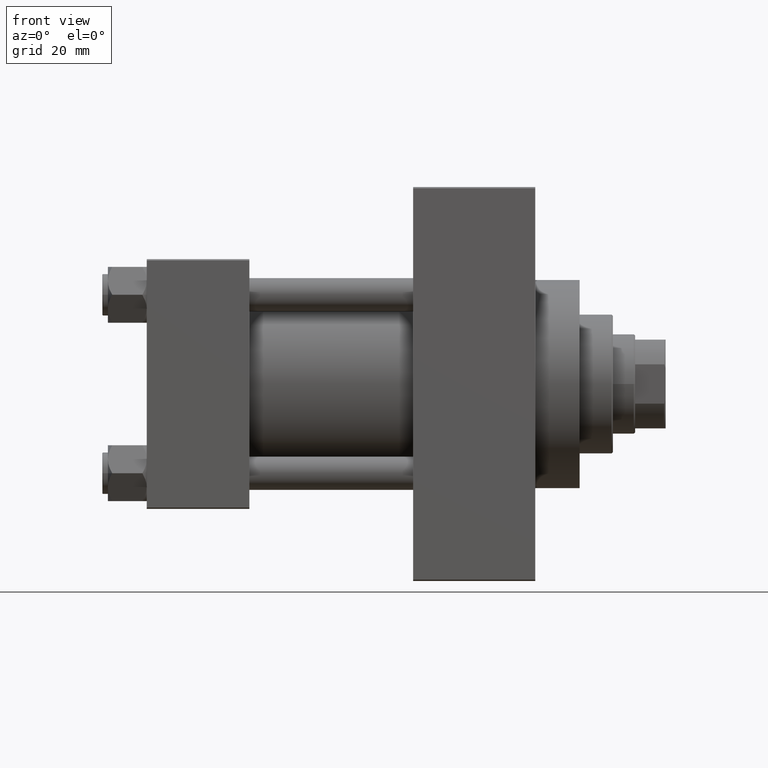
[diagram: clean part render]
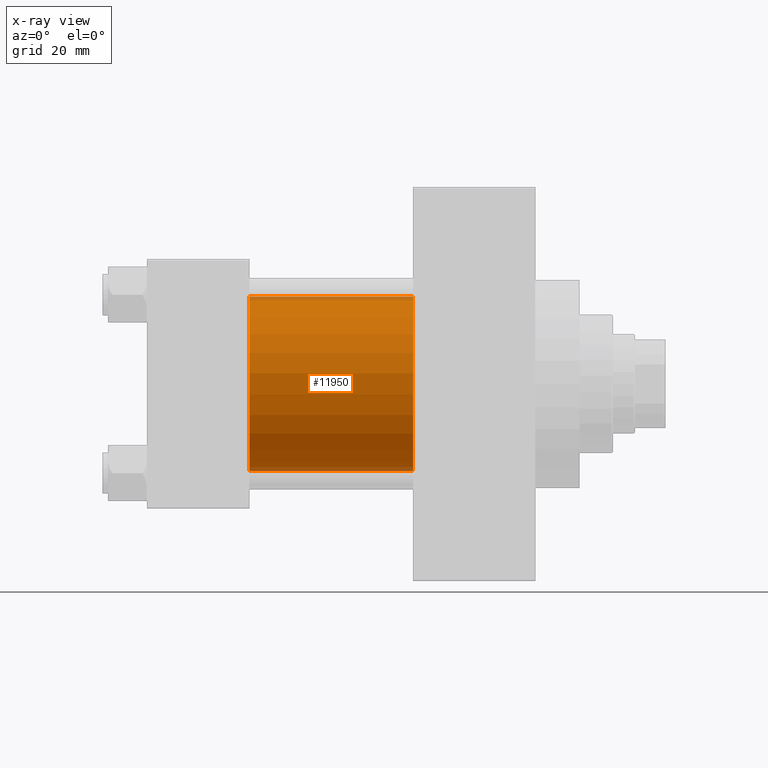
[diagram: x-ray — body ghosted, one internal face saturated and labeled with its STEP entity id]
A machine part, front view, then the same camera in x-ray: the body is ghosted and one INTERNAL B-rep face — a face not visible from any outside direction — is saturated and labeled: STEP entity #11950.
In plain terms, the highlighted cylindrical surface (partial cylindrical patch) has radius 31.5 mm, axis along (-1, -0, -0).
Its self-contained STEP definition (entity closure, byte-faithful):
#2857 = ORIENTED_EDGE ( 'NONE', *, *, #26463, .T. ) ;
#2910 = CARTESIAN_POINT ( 'NONE',  ( 96.00000000000000000, -2.602085213965210642E-15, 0.000000000000000000 ) ) ;
#4146 = AXIS2_PLACEMENT_3D ( 'NONE', #25757, #46780, #43199 ) ;
#6125 = VERTEX_POINT ( 'NONE', #18615 ) ;
#7192 = VECTOR ( 'NONE', #16864, 1000.000000000000000 ) ;
#11950 = ADVANCED_FACE ( 'NONE', ( #46374 ), #21075, .F. ) ;
#13265 = LINE ( 'NONE', #34994, #7192 ) ;
#14201 = DIRECTION ( 'NONE',  ( 0.000000000000000000, 0.000000000000000000, -1.000000000000000000 ) ) ;
#16864 = DIRECTION ( 'NONE',  ( -1.000000000000000000, -0.000000000000000000, -0.000000000000000000 ) ) ;
#17937 = ORIENTED_EDGE ( 'NONE', *, *, #45032, .F. ) ;
#18456 = CARTESIAN_POINT ( 'NONE',  ( 37.00000000000000000, -2.602085213965210642E-15, 31.50000000000000000 ) ) ;
#18615 = CARTESIAN_POINT ( 'NONE',  ( 96.00000000000000000, 1.255552203348951850E-15, -31.50000000000000000 ) ) ;
#18648 = CIRCLE ( 'NONE', #4146, 31.50000000000000000 ) ;
#18865 = ORIENTED_EDGE ( 'NONE', *, *, #41537, .F. ) ;
#21075 = CYLINDRICAL_SURFACE ( 'NONE', #35772, 31.50000000000000000 ) ;
#22725 = CARTESIAN_POINT ( 'NONE',  ( 96.00000000000000000, -2.602085213965210642E-15, 31.50000000000000000 ) ) ;
#24634 = CARTESIAN_POINT ( 'NONE',  ( 96.00000000000000000, -2.602085213965210642E-15, 31.50000000000000000 ) ) ;
#24671 = VECTOR ( 'NONE', #29878, 1000.000000000000000 ) ;
#25757 = CARTESIAN_POINT ( 'NONE',  ( 96.00000000000000000, -2.602085213965210642E-15, 0.000000000000000000 ) ) ;
#26463 = EDGE_CURVE ( 'NONE', #32103, #6125, #18648, .T. ) ;
#28483 = AXIS2_PLACEMENT_3D ( 'NONE', #39288, #28995, #14201 ) ;
#28995 = DIRECTION ( 'NONE',  ( 1.000000000000000000, 0.000000000000000000, 0.000000000000000000 ) ) ;
#29302 = CARTESIAN_POINT ( 'NONE',  ( 37.00000000000000000, 1.255552203348951850E-15, -31.50000000000000000 ) ) ;
#29878 = DIRECTION ( 'NONE',  ( -1.000000000000000000, -0.000000000000000000, -0.000000000000000000 ) ) ;
#32100 = EDGE_LOOP ( 'NONE', ( #2857, #41830, #18865, #17937 ) ) ;
#32103 = VERTEX_POINT ( 'NONE', #24634 ) ;
#33074 = CIRCLE ( 'NONE', #28483, 31.50000000000000000 ) ;
#34994 = CARTESIAN_POINT ( 'NONE',  ( 96.00000000000000000, 1.255552203348951850E-15, -31.50000000000000000 ) ) ;
#35772 = AXIS2_PLACEMENT_3D ( 'NONE', #2910, #46612, #46854 ) ;
#39288 = CARTESIAN_POINT ( 'NONE',  ( 37.00000000000000000, -2.602085213965210642E-15, 0.000000000000000000 ) ) ;
#41537 = EDGE_CURVE ( 'NONE', #42023, #42143, #33074, .T. ) ;
#41830 = ORIENTED_EDGE ( 'NONE', *, *, #43475, .T. ) ;
#42023 = VERTEX_POINT ( 'NONE', #18456 ) ;
#42143 = VERTEX_POINT ( 'NONE', #29302 ) ;
#43199 = DIRECTION ( 'NONE',  ( 0.000000000000000000, 0.000000000000000000, -1.000000000000000000 ) ) ;
#43475 = EDGE_CURVE ( 'NONE', #6125, #42143, #13265, .T. ) ;
#43974 = LINE ( 'NONE', #22725, #24671 ) ;
#45032 = EDGE_CURVE ( 'NONE', #32103, #42023, #43974, .T. ) ;
#46374 = FACE_OUTER_BOUND ( 'NONE', #32100, .T. ) ;
#46612 = DIRECTION ( 'NONE',  ( -1.000000000000000000, -0.000000000000000000, -0.000000000000000000 ) ) ;
#46780 = DIRECTION ( 'NONE',  ( 1.000000000000000000, 0.000000000000000000, 0.000000000000000000 ) ) ;
#46854 = DIRECTION ( 'NONE',  ( 0.000000000000000000, 0.000000000000000000, 1.000000000000000000 ) ) ;